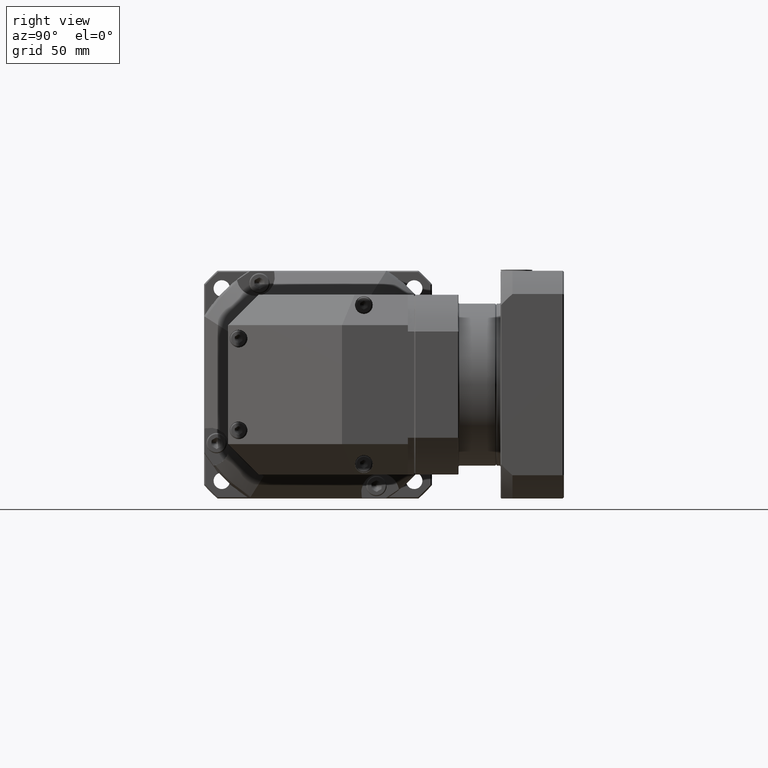
[diagram: clean part render]
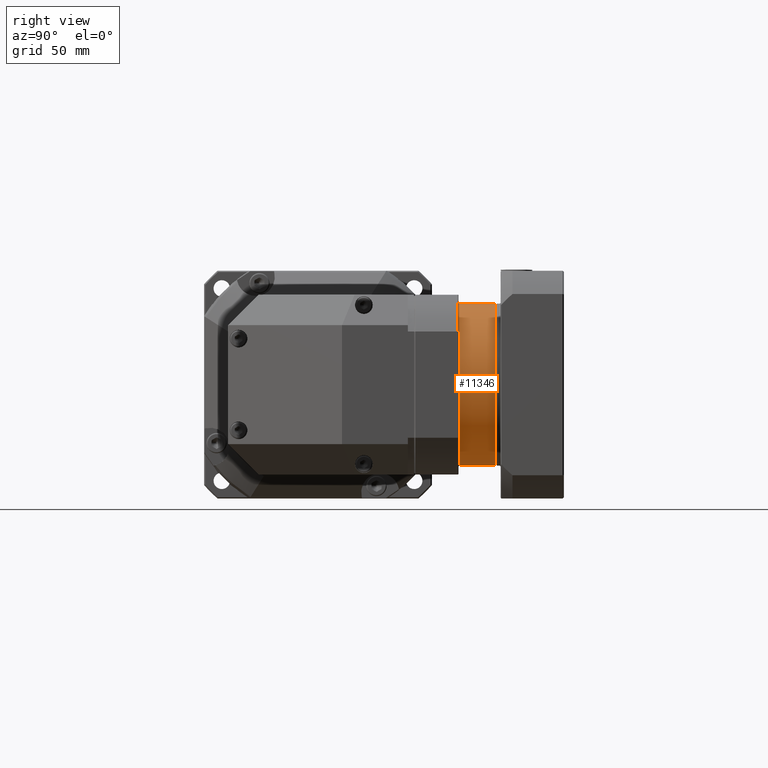
[diagram: same view with one face highlighted and labeled with its STEP entity id]
A machine part, right view. The second image highlights one B-rep face of the part: STEP entity #11346.
In plain terms, the highlighted cylindrical surface (bore or boss wall) has radius 64 mm, axis along (0, 1, 0).
Its self-contained STEP definition (entity closure, byte-faithful):
#2247=FACE_BOUND('',#3729,.T.);
#2763=FACE_OUTER_BOUND('',#3728,.T.);
#3728=EDGE_LOOP('',(#8656));
#3729=EDGE_LOOP('',(#8657));
#4591=CIRCLE('',#12467,64.);
#4601=CIRCLE('',#12479,64.);
#5333=VERTEX_POINT('',#18324);
#5347=VERTEX_POINT('',#18354);
#6542=EDGE_CURVE('',#5333,#5333,#4591,.T.);
#6556=EDGE_CURVE('',#5347,#5347,#4601,.T.);
#8656=ORIENTED_EDGE('',*,*,#6556,.F.);
#8657=ORIENTED_EDGE('',*,*,#6542,.F.);
#10364=CYLINDRICAL_SURFACE('',#12478,64.);
#11346=ADVANCED_FACE('',(#2763,#2247),#10364,.T.);
#12467=AXIS2_PLACEMENT_3D('',#18325,#14717,#14718);
#12478=AXIS2_PLACEMENT_3D('',#18353,#14743,#14744);
#12479=AXIS2_PLACEMENT_3D('',#18355,#14745,#14746);
#14717=DIRECTION('center_axis',(-3.1946160579748E-16,-1.,-2.47869481113448E-16));
#14718=DIRECTION('ref_axis',(-1.8771876414414E-15,-2.47869481113447E-16,
1.));
#14743=DIRECTION('center_axis',(3.1946160579748E-16,1.,2.47869481113448E-16));
#14744=DIRECTION('ref_axis',(-1.8771876414414E-15,-2.47869481113447E-16,
1.));
#14745=DIRECTION('center_axis',(3.1946160579748E-16,1.,2.47869481113448E-16));
#14746=DIRECTION('ref_axis',(-1.8771876414414E-15,-2.47869481113447E-16,
1.));
#18324=CARTESIAN_POINT('',(223.844650275927,102.434868265213,-49.9998135957564));
#18325=CARTESIAN_POINT('Origin',(223.844650275927,102.434868265213,14.0001864042436));
#18353=CARTESIAN_POINT('Origin',(223.844650275927,101.434868265213,14.0001864042436));
#18354=CARTESIAN_POINT('',(223.844650275927,130.434868265213,-49.9998135957564));
#18355=CARTESIAN_POINT('Origin',(223.844650275927,130.434868265213,14.0001864042436));